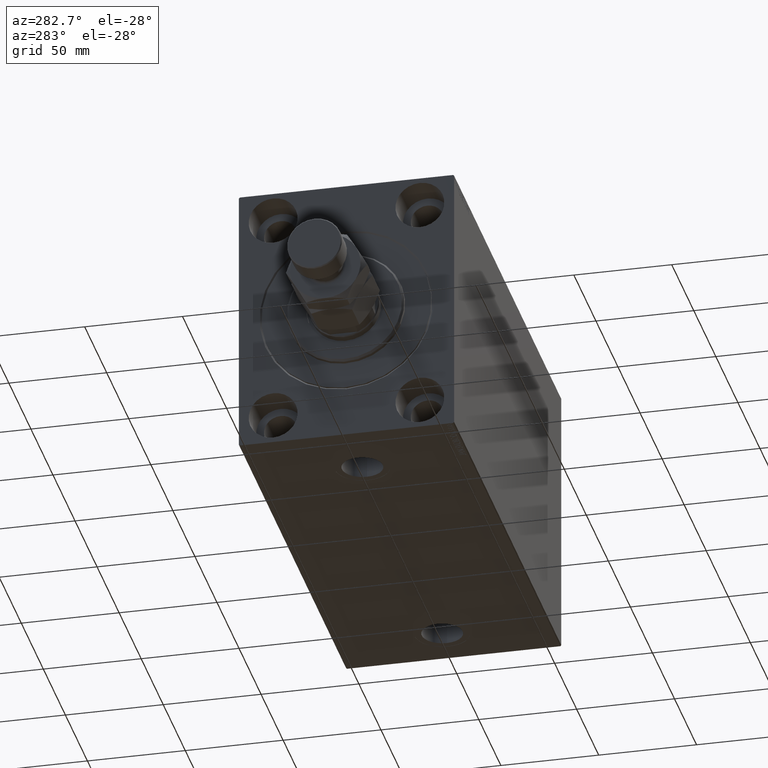
[diagram: clean part render]
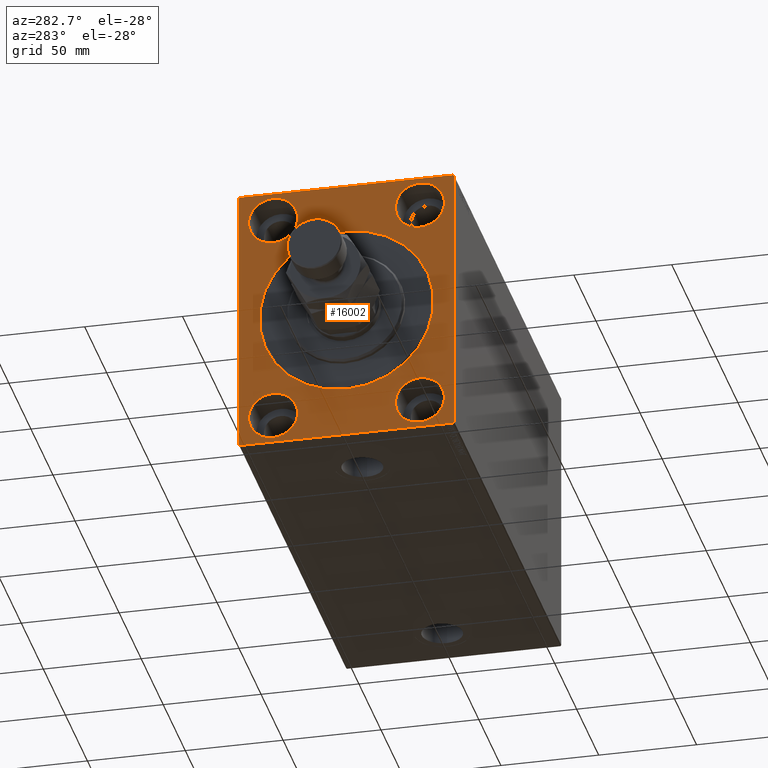
[diagram: same view with one face highlighted and labeled with its STEP entity id]
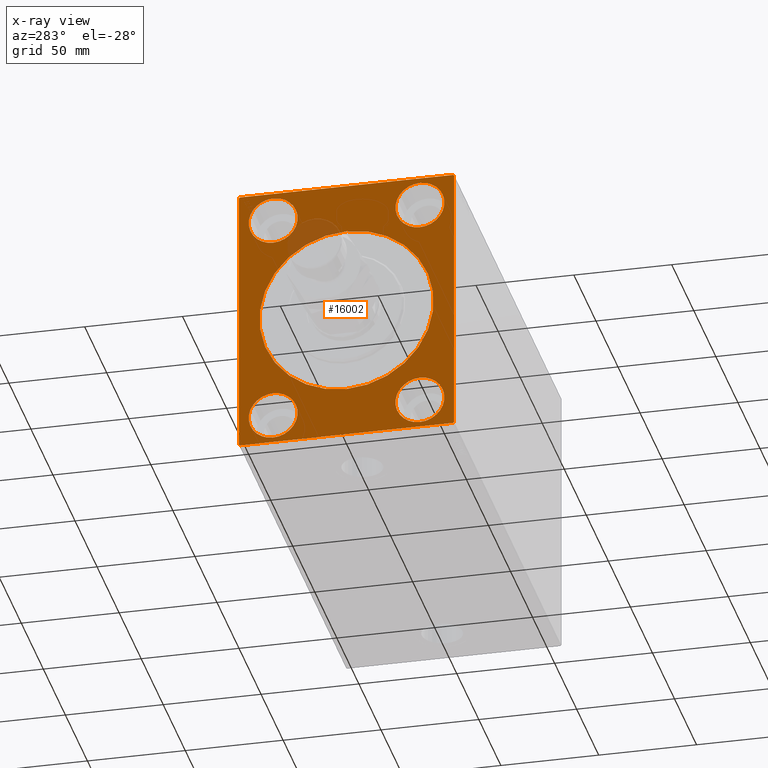
[diagram: x-ray of the same camera — body ghosted, the highlighted face saturated]
A machine part, auxiliary view. The second image highlights one B-rep face of the part: STEP entity #16002.
The next image is the same camera in x-ray: the body ghosted, the highlighted face saturated — about 4% of this face is hidden behind the body in this view.
In plain terms, the highlighted planar face has unit normal (1, 0, 0).
Its self-contained STEP definition (entity closure, byte-faithful):
#319 = CARTESIAN_POINT ( 'NONE',  ( 0.000000000000000000, -54.50000000000000711, -70.00000000000002842 ) ) ;
#489 = CARTESIAN_POINT ( 'NONE',  ( 0.000000000000000000, 54.49999999999993605, 70.00000000000000000 ) ) ;
#652 = CIRCLE ( 'NONE', #18146, 44.49999999999995737 ) ;
#930 = EDGE_CURVE ( 'NONE', #14463, #37091, #27736, .T. ) ;
#1274 = ORIENTED_EDGE ( 'NONE', *, *, #11182, .T. ) ;
#1326 = VECTOR ( 'NONE', #11212, 1000.000000000000114 ) ;
#1535 = CARTESIAN_POINT ( 'NONE',  ( 0.000000000000000000, 0.000000000000000000, 44.49999999999995737 ) ) ;
#1750 = EDGE_CURVE ( 'NONE', #30791, #14055, #26214, .T. ) ;
#1927 = VERTEX_POINT ( 'NONE', #1535 ) ;
#2078 = CIRCLE ( 'NONE', #32481, 12.49999999999999645 ) ;
#2220 = ORIENTED_EDGE ( 'NONE', *, *, #8241, .T. ) ;
#2738 = CARTESIAN_POINT ( 'NONE',  ( 0.000000000000000000, -37.50000000000000711, 67.50000000000000000 ) ) ;
#3605 = DIRECTION ( 'NONE',  ( 1.000000000000000000, 0.000000000000000000, 0.000000000000000000 ) ) ;
#3766 = DIRECTION ( 'NONE',  ( -1.000000000000000000, 0.000000000000000000, 0.000000000000000000 ) ) ;
#4049 = EDGE_CURVE ( 'NONE', #6683, #30737, #11629, .T. ) ;
#4298 = FACE_BOUND ( 'NONE', #6164, .T. ) ;
#4385 = CARTESIAN_POINT ( 'NONE',  ( 0.000000000000000000, -37.50000000000000711, 55.00000000000000711 ) ) ;
#5515 = ORIENTED_EDGE ( 'NONE', *, *, #10039, .F. ) ;
#5723 = VERTEX_POINT ( 'NONE', #25422 ) ;
#5838 = CARTESIAN_POINT ( 'NONE',  ( 0.000000000000000000, -37.50000000000002132, -54.99999999999999289 ) ) ;
#6164 = EDGE_LOOP ( 'NONE', ( #38816, #43020 ) ) ;
#6366 = DIRECTION ( 'NONE',  ( 1.000000000000000000, 0.000000000000000000, 0.000000000000000000 ) ) ;
#6644 = VERTEX_POINT ( 'NONE', #36460 ) ;
#6683 = VERTEX_POINT ( 'NONE', #21737 ) ;
#6853 = DIRECTION ( 'NONE',  ( 0.000000000000000000, 0.000000000000000000, -1.000000000000000000 ) ) ;
#6951 = PLANE ( 'NONE',  #36777 ) ;
#7324 = DIRECTION ( 'NONE',  ( 0.000000000000000000, 0.000000000000000000, 1.000000000000000000 ) ) ;
#7801 = CARTESIAN_POINT ( 'NONE',  ( 0.000000000000000000, -55.00000000000000711, 69.50000000000001421 ) ) ;
#8241 = EDGE_CURVE ( 'NONE', #24658, #30737, #26608, .T. ) ;
#8652 = ORIENTED_EDGE ( 'NONE', *, *, #32165, .F. ) ;
#9077 = VERTEX_POINT ( 'NONE', #27382 ) ;
#9478 = AXIS2_PLACEMENT_3D ( 'NONE', #4385, #29388, #15348 ) ;
#10039 = EDGE_CURVE ( 'NONE', #13767, #44941, #21824, .T. ) ;
#10594 = ORIENTED_EDGE ( 'NONE', *, *, #43270, .F. ) ;
#10764 = AXIS2_PLACEMENT_3D ( 'NONE', #13752, #6366, #46778 ) ;
#10978 = FACE_BOUND ( 'NONE', #28927, .T. ) ;
#11182 = EDGE_CURVE ( 'NONE', #6644, #1927, #652, .T. ) ;
#11212 = DIRECTION ( 'NONE',  ( -0.000000000000000000, 0.7071067811865474617, -0.7071067811865474617 ) ) ;
#11267 = CIRCLE ( 'NONE', #38658, 12.49999999999999645 ) ;
#11478 = AXIS2_PLACEMENT_3D ( 'NONE', #28496, #36066, #24924 ) ;
#11629 = LINE ( 'NONE', #44690, #46786 ) ;
#13752 = CARTESIAN_POINT ( 'NONE',  ( 0.000000000000000000, 0.000000000000000000, 0.000000000000000000 ) ) ;
#13767 = VERTEX_POINT ( 'NONE', #31676 ) ;
#14055 = VERTEX_POINT ( 'NONE', #34709 ) ;
#14253 = ORIENTED_EDGE ( 'NONE', *, *, #45739, .T. ) ;
#14345 = AXIS2_PLACEMENT_3D ( 'NONE', #33245, #15180, #7324 ) ;
#14463 = VERTEX_POINT ( 'NONE', #36923 ) ;
#14469 = CARTESIAN_POINT ( 'NONE',  ( 0.000000000000000000, -37.50000000000002132, -67.49999999999998579 ) ) ;
#14906 = DIRECTION ( 'NONE',  ( 0.000000000000000000, -1.982541115402065110E-16, 1.000000000000000000 ) ) ;
#15026 = FACE_BOUND ( 'NONE', #23355, .T. ) ;
#15180 = DIRECTION ( 'NONE',  ( -1.000000000000000000, 0.000000000000000000, 0.000000000000000000 ) ) ;
#15263 = EDGE_CURVE ( 'NONE', #27541, #5723, #36548, .T. ) ;
#15348 = DIRECTION ( 'NONE',  ( 0.000000000000000000, 0.000000000000000000, 1.000000000000000000 ) ) ;
#15428 = VERTEX_POINT ( 'NONE', #38168 ) ;
#15680 = CARTESIAN_POINT ( 'NONE',  ( 0.000000000000000000, -55.00000000000000711, 69.50000000000001421 ) ) ;
#15778 = CIRCLE ( 'NONE', #42357, 12.49999999999999645 ) ;
#16002 = ADVANCED_FACE ( 'NONE', ( #18608, #36195, #10978, #15026, #4298, #36663 ), #6951, .F. ) ;
#16658 = DIRECTION ( 'NONE',  ( 0.000000000000000000, 0.000000000000000000, -1.000000000000000000 ) ) ;
#16956 = ORIENTED_EDGE ( 'NONE', *, *, #4049, .F. ) ;
#17390 = VECTOR ( 'NONE', #14906, 1000.000000000000000 ) ;
#17399 = CIRCLE ( 'NONE', #14345, 12.49999999999999645 ) ;
#18146 = AXIS2_PLACEMENT_3D ( 'NONE', #43471, #43247, #6853 ) ;
#18287 = VERTEX_POINT ( 'NONE', #14469 ) ;
#18608 = FACE_BOUND ( 'NONE', #23794, .T. ) ;
#19440 = EDGE_CURVE ( 'NONE', #27474, #9077, #21587, .T. ) ;
#19579 = VECTOR ( 'NONE', #26368, 1000.000000000000114 ) ;
#19761 = CARTESIAN_POINT ( 'NONE',  ( 0.000000000000000000, -55.00000000000000711, 69.99999999999998579 ) ) ;
#21587 = LINE ( 'NONE', #42996, #41424 ) ;
#21737 = CARTESIAN_POINT ( 'NONE',  ( 0.000000000000000000, 54.49999999999993605, 70.00000000000000000 ) ) ;
#21824 = LINE ( 'NONE', #22055, #17390 ) ;
#22005 = LINE ( 'NONE', #319, #31440 ) ;
#22012 = ORIENTED_EDGE ( 'NONE', *, *, #39963, .T. ) ;
#22014 = DIRECTION ( 'NONE',  ( -1.000000000000000000, 0.000000000000000000, 0.000000000000000000 ) ) ;
#22055 = CARTESIAN_POINT ( 'NONE',  ( 0.000000000000000000, 55.00000000000002132, -70.00000000000000000 ) ) ;
#22355 = EDGE_LOOP ( 'NONE', ( #10594, #35951 ) ) ;
#22398 = LINE ( 'NONE', #489, #1326 ) ;
#23355 = EDGE_LOOP ( 'NONE', ( #30515, #26875 ) ) ;
#23718 = VERTEX_POINT ( 'NONE', #27430 ) ;
#23794 = EDGE_LOOP ( 'NONE', ( #22012, #1274 ) ) ;
#23820 = CARTESIAN_POINT ( 'NONE',  ( 0.000000000000000000, 37.50000000000000711, 42.50000000000000711 ) ) ;
#24658 = VERTEX_POINT ( 'NONE', #15680 ) ;
#24771 = EDGE_CURVE ( 'NONE', #18287, #23718, #2078, .T. ) ;
#24924 = DIRECTION ( 'NONE',  ( 0.000000000000000000, 0.000000000000000000, 1.000000000000000000 ) ) ;
#25143 = EDGE_CURVE ( 'NONE', #23718, #18287, #15778, .T. ) ;
#25205 = EDGE_CURVE ( 'NONE', #6683, #44941, #22398, .T. ) ;
#25422 = CARTESIAN_POINT ( 'NONE',  ( 0.000000000000000000, 37.49999999999997868, -42.49999999999999289 ) ) ;
#26149 = DIRECTION ( 'NONE',  ( 0.000000000000000000, -1.000000000000000000, -1.261617073437677999E-16 ) ) ;
#26214 = CIRCLE ( 'NONE', #31564, 12.49999999999999645 ) ;
#26368 = DIRECTION ( 'NONE',  ( -0.000000000000000000, 0.7071067811865474617, 0.7071067811865474617 ) ) ;
#26608 = LINE ( 'NONE', #7801, #19579 ) ;
#26815 = DIRECTION ( 'NONE',  ( 0.000000000000000000, 0.000000000000000000, 1.000000000000000000 ) ) ;
#26875 = ORIENTED_EDGE ( 'NONE', *, *, #1750, .F. ) ;
#26891 = LINE ( 'NONE', #19761, #33995 ) ;
#27382 = CARTESIAN_POINT ( 'NONE',  ( 0.000000000000000000, 54.50000000000002132, -70.00000000000000000 ) ) ;
#27430 = CARTESIAN_POINT ( 'NONE',  ( 0.000000000000000000, -37.50000000000002132, -42.49999999999999289 ) ) ;
#27474 = VERTEX_POINT ( 'NONE', #39580 ) ;
#27541 = VERTEX_POINT ( 'NONE', #28378 ) ;
#27736 = CIRCLE ( 'NONE', #9478, 12.49999999999999645 ) ;
#28378 = CARTESIAN_POINT ( 'NONE',  ( 0.000000000000000000, 37.49999999999997868, -67.49999999999998579 ) ) ;
#28496 = CARTESIAN_POINT ( 'NONE',  ( 0.000000000000000000, 37.49999999999997868, -54.99999999999999289 ) ) ;
#28927 = EDGE_LOOP ( 'NONE', ( #8652, #38104 ) ) ;
#28998 = EDGE_CURVE ( 'NONE', #24658, #15428, #26891, .T. ) ;
#29188 = DIRECTION ( 'NONE',  ( 0.000000000000000000, 1.000000000000000000, 2.523234146875355012E-16 ) ) ;
#29388 = DIRECTION ( 'NONE',  ( -1.000000000000000000, 0.000000000000000000, 0.000000000000000000 ) ) ;
#29458 = DIRECTION ( 'NONE',  ( 0.000000000000000000, 0.000000000000000000, 1.000000000000000000 ) ) ;
#29470 = CARTESIAN_POINT ( 'NONE',  ( 0.000000000000000000, 55.00000000000002132, -69.49999999999997158 ) ) ;
#30515 = ORIENTED_EDGE ( 'NONE', *, *, #32122, .F. ) ;
#30737 = VERTEX_POINT ( 'NONE', #40679 ) ;
#30791 = VERTEX_POINT ( 'NONE', #23820 ) ;
#31440 = VECTOR ( 'NONE', #46515, 999.9999999999998863 ) ;
#31564 = AXIS2_PLACEMENT_3D ( 'NONE', #39407, #35838, #32502 ) ;
#31676 = CARTESIAN_POINT ( 'NONE',  ( 0.000000000000000000, 55.00000000000002132, -69.49999999999997158 ) ) ;
#32122 = EDGE_CURVE ( 'NONE', #14055, #30791, #11267, .T. ) ;
#32165 = EDGE_CURVE ( 'NONE', #37091, #14463, #17399, .T. ) ;
#32481 = AXIS2_PLACEMENT_3D ( 'NONE', #37303, #33036, #33734 ) ;
#32502 = DIRECTION ( 'NONE',  ( 0.000000000000000000, 0.000000000000000000, 1.000000000000000000 ) ) ;
#32809 = CIRCLE ( 'NONE', #39627, 12.49999999999999645 ) ;
#32865 = CARTESIAN_POINT ( 'NONE',  ( 0.000000000000000000, 0.000000000000000000, 0.000000000000000000 ) ) ;
#32899 = EDGE_LOOP ( 'NONE', ( #35945, #2220, #16956, #38096, #5515, #41833, #41307, #14253 ) ) ;
#33012 = CARTESIAN_POINT ( 'NONE',  ( 0.000000000000000000, 37.50000000000000711, 55.00000000000000711 ) ) ;
#33036 = DIRECTION ( 'NONE',  ( -1.000000000000000000, 0.000000000000000000, 0.000000000000000000 ) ) ;
#33245 = CARTESIAN_POINT ( 'NONE',  ( 0.000000000000000000, -37.50000000000000711, 55.00000000000000711 ) ) ;
#33541 = CIRCLE ( 'NONE', #10764, 44.49999999999995737 ) ;
#33734 = DIRECTION ( 'NONE',  ( 0.000000000000000000, 0.000000000000000000, 1.000000000000000000 ) ) ;
#33995 = VECTOR ( 'NONE', #16658, 1000.000000000000000 ) ;
#34709 = CARTESIAN_POINT ( 'NONE',  ( 0.000000000000000000, 37.50000000000000711, 67.50000000000000000 ) ) ;
#35838 = DIRECTION ( 'NONE',  ( -1.000000000000000000, 0.000000000000000000, 0.000000000000000000 ) ) ;
#35945 = ORIENTED_EDGE ( 'NONE', *, *, #28998, .F. ) ;
#35951 = ORIENTED_EDGE ( 'NONE', *, *, #15263, .F. ) ;
#36066 = DIRECTION ( 'NONE',  ( -1.000000000000000000, 0.000000000000000000, 0.000000000000000000 ) ) ;
#36195 = FACE_BOUND ( 'NONE', #22355, .T. ) ;
#36460 = CARTESIAN_POINT ( 'NONE',  ( 0.000000000000000000, 5.449678256205716459E-15, -44.49999999999995737 ) ) ;
#36548 = CIRCLE ( 'NONE', #11478, 12.49999999999999645 ) ;
#36663 = FACE_OUTER_BOUND ( 'NONE', #32899, .T. ) ;
#36777 = AXIS2_PLACEMENT_3D ( 'NONE', #32865, #3605, #43109 ) ;
#36923 = CARTESIAN_POINT ( 'NONE',  ( 0.000000000000000000, -37.50000000000000711, 42.50000000000000711 ) ) ;
#37091 = VERTEX_POINT ( 'NONE', #2738 ) ;
#37303 = CARTESIAN_POINT ( 'NONE',  ( 0.000000000000000000, -37.50000000000002132, -54.99999999999999289 ) ) ;
#38096 = ORIENTED_EDGE ( 'NONE', *, *, #25205, .T. ) ;
#38104 = ORIENTED_EDGE ( 'NONE', *, *, #930, .F. ) ;
#38168 = CARTESIAN_POINT ( 'NONE',  ( 0.000000000000000000, -55.00000000000000711, -69.50000000000007105 ) ) ;
#38292 = DIRECTION ( 'NONE',  ( 0.000000000000000000, 0.000000000000000000, 1.000000000000000000 ) ) ;
#38658 = AXIS2_PLACEMENT_3D ( 'NONE', #33012, #3766, #29458 ) ;
#38816 = ORIENTED_EDGE ( 'NONE', *, *, #25143, .F. ) ;
#39407 = CARTESIAN_POINT ( 'NONE',  ( 0.000000000000000000, 37.50000000000000711, 55.00000000000000711 ) ) ;
#39580 = CARTESIAN_POINT ( 'NONE',  ( 0.000000000000000000, -54.50000000000000711, -70.00000000000002842 ) ) ;
#39627 = AXIS2_PLACEMENT_3D ( 'NONE', #40068, #22014, #38292 ) ;
#39963 = EDGE_CURVE ( 'NONE', #1927, #6644, #33541, .T. ) ;
#40068 = CARTESIAN_POINT ( 'NONE',  ( 0.000000000000000000, 37.49999999999997868, -54.99999999999999289 ) ) ;
#40510 = CARTESIAN_POINT ( 'NONE',  ( 0.000000000000000000, 54.99999999999999289, 69.49999999999995737 ) ) ;
#40679 = CARTESIAN_POINT ( 'NONE',  ( 0.000000000000000000, -54.50000000000003553, 69.99999999999998579 ) ) ;
#41307 = ORIENTED_EDGE ( 'NONE', *, *, #19440, .F. ) ;
#41424 = VECTOR ( 'NONE', #29188, 1000.000000000000000 ) ;
#41833 = ORIENTED_EDGE ( 'NONE', *, *, #43433, .T. ) ;
#42357 = AXIS2_PLACEMENT_3D ( 'NONE', #5838, #45328, #26815 ) ;
#42996 = CARTESIAN_POINT ( 'NONE',  ( 0.000000000000000000, -55.00000000000000711, -70.00000000000002842 ) ) ;
#43020 = ORIENTED_EDGE ( 'NONE', *, *, #24771, .F. ) ;
#43109 = DIRECTION ( 'NONE',  ( 0.000000000000000000, 0.000000000000000000, -1.000000000000000000 ) ) ;
#43247 = DIRECTION ( 'NONE',  ( 1.000000000000000000, 0.000000000000000000, 0.000000000000000000 ) ) ;
#43270 = EDGE_CURVE ( 'NONE', #5723, #27541, #32809, .T. ) ;
#43433 = EDGE_CURVE ( 'NONE', #13767, #9077, #47062, .T. ) ;
#43471 = CARTESIAN_POINT ( 'NONE',  ( 0.000000000000000000, 0.000000000000000000, 0.000000000000000000 ) ) ;
#43728 = DIRECTION ( 'NONE',  ( 0.000000000000000000, -0.7071067811865279218, -0.7071067811865672237 ) ) ;
#44163 = VECTOR ( 'NONE', #43728, 1000.000000000000000 ) ;
#44690 = CARTESIAN_POINT ( 'NONE',  ( 0.000000000000000000, 54.99999999999999289, 70.00000000000000000 ) ) ;
#44941 = VERTEX_POINT ( 'NONE', #40510 ) ;
#45328 = DIRECTION ( 'NONE',  ( -1.000000000000000000, 0.000000000000000000, 0.000000000000000000 ) ) ;
#45739 = EDGE_CURVE ( 'NONE', #27474, #15428, #22005, .T. ) ;
#46515 = DIRECTION ( 'NONE',  ( -0.000000000000000000, -0.7071067811865771047, 0.7071067811865180408 ) ) ;
#46778 = DIRECTION ( 'NONE',  ( 0.000000000000000000, 0.000000000000000000, -1.000000000000000000 ) ) ;
#46786 = VECTOR ( 'NONE', #26149, 1000.000000000000000 ) ;
#47062 = LINE ( 'NONE', #29470, #44163 ) ;